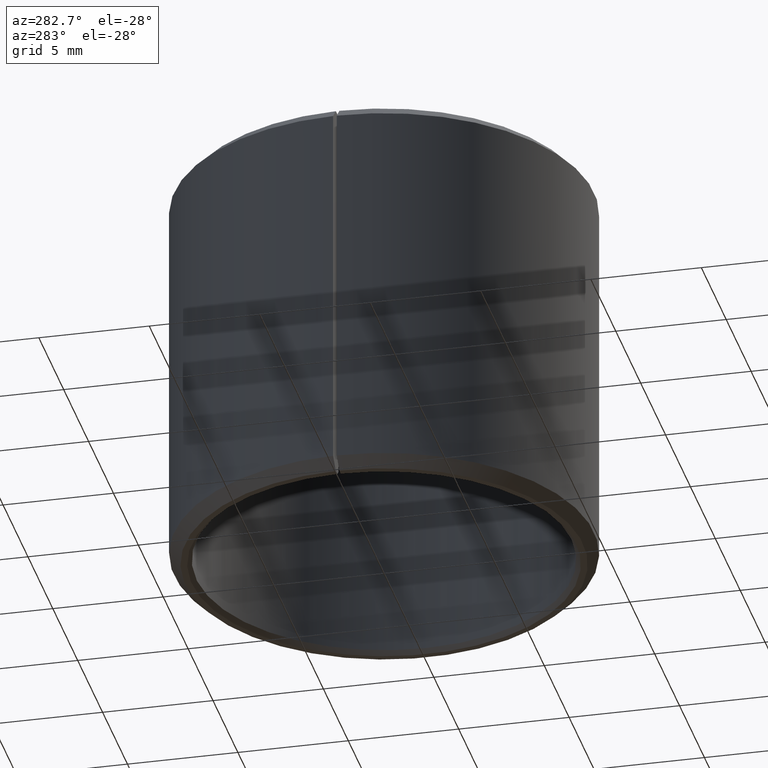
[diagram: clean part render]
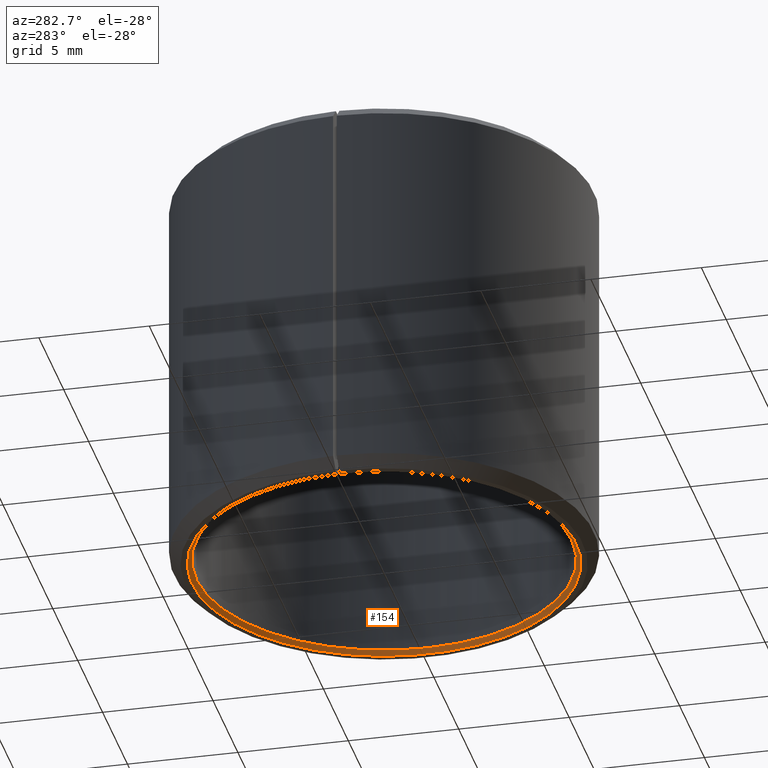
[diagram: same view with one face highlighted and labeled with its STEP entity id]
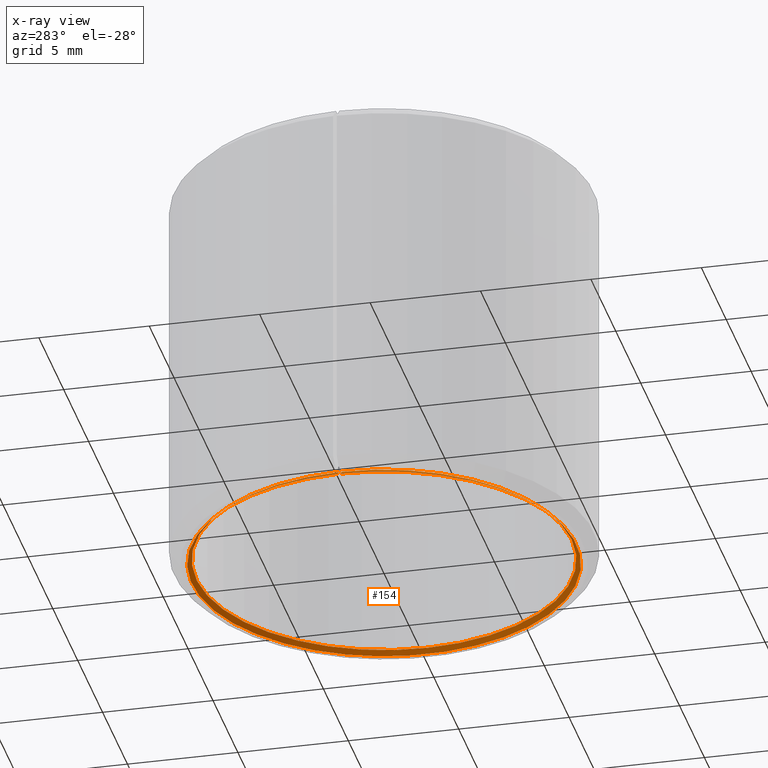
[diagram: x-ray of the same camera — body ghosted, the highlighted face saturated]
A machine part, auxiliary view. The second image highlights one B-rep face of the part: STEP entity #154.
The next image is the same camera in x-ray: the body ghosted, the highlighted face saturated — about 0% of this face is hidden behind the body in this view.
In plain terms, the highlighted conical surface has half-angle 45 deg.
Its self-contained STEP definition (entity closure, byte-faithful):
#154=ADVANCED_FACE('',(#167),#168,.F.);
#167=FACE_OUTER_BOUND('',#188,.T.);
#168=CONICAL_SURFACE('',#189,0.0085,0.785398163397446);
#188=EDGE_LOOP('',(#213,#214,#215,#216));
#189=AXIS2_PLACEMENT_3D('',#217,#218,#219);
#213=ORIENTED_EDGE('',*,*,#288,.T.);
#214=ORIENTED_EDGE('',*,*,#289,.F.);
#215=ORIENTED_EDGE('',*,*,#284,.F.);
#216=ORIENTED_EDGE('',*,*,#290,.T.);
#217=CARTESIAN_POINT('',(-3.46944695195362E-018,-2.60208521396521E-018,0.0002));
#218=DIRECTION('',(6.12323399573677E-017,-0.0,-1.0));
#219=DIRECTION('',(-1.0,0.0,-6.12323399573677E-017));
#284=EDGE_CURVE('',#308,#309,#310,.T.);
#288=EDGE_CURVE('',#316,#317,#318,.T.);
#289=EDGE_CURVE('',#309,#317,#319,.T.);
#290=EDGE_CURVE('',#308,#316,#320,.T.);
#308=VERTEX_POINT('',#348);
#309=VERTEX_POINT('',#349);
#310=CIRCLE('',#350,0.0085);
#316=VERTEX_POINT('',#358);
#317=VERTEX_POINT('',#359);
#318=CIRCLE('',#360,0.0087);
#319=LINE('',#361,#362);
#320=LINE('',#363,#364);
#348=CARTESIAN_POINT('',(0.000148345454716907,0.00849870540882932,0.0002));
#349=CARTESIAN_POINT('',(-3.46944695195362E-018,0.0085,0.0002));
#350=AXIS2_PLACEMENT_3D('',#404,#405,#406);
#358=CARTESIAN_POINT('',(0.000151835936004364,0.0086986749478606,-6.14118979528001E-019));
#359=CARTESIAN_POINT('',(-3.46944695195362E-018,0.0087,-6.23416249179165E-019));
#360=AXIS2_PLACEMENT_3D('',#412,#413,#414);
#361=CARTESIAN_POINT('',(-3.46944695195362E-018,0.0085,0.0002));
#362=VECTOR('',#415,1.0);
#363=CARTESIAN_POINT('',(0.000148345454716907,0.00849870540882932,0.0002));
#364=VECTOR('',#416,1.0);
#404=CARTESIAN_POINT('',(-3.46944695195362E-018,-2.60208521396521E-018,0.0002));
#405=DIRECTION('',(6.12323399573677E-017,0.0,-1.0));
#406=DIRECTION('',(-1.0,0.0,-6.12323399573677E-017));
#412=CARTESIAN_POINT('',(-3.46944695195362E-018,-2.60208521396521E-018,-6.23416249179165E-019));
#413=DIRECTION('',(6.12323399573677E-017,0.0,-1.0));
#414=DIRECTION('',(-1.0,0.0,-6.12323399573677E-017));
#415=DIRECTION('',(0.0,0.707106781186545,-0.707106781186551));
#416=DIRECTION('',(0.0123407149398269,0.706999085398821,-0.707106781186551));